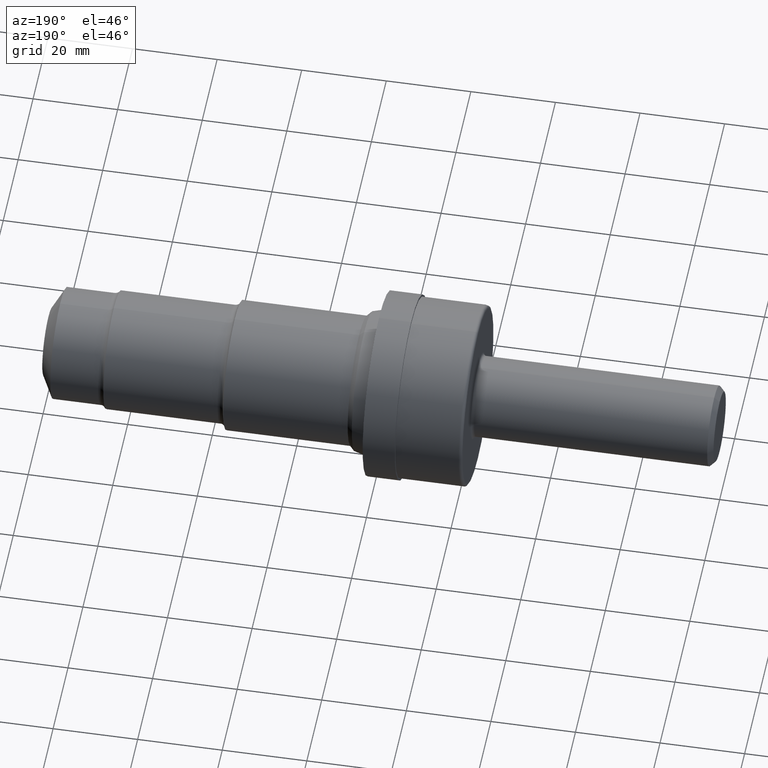
[diagram: clean part render]
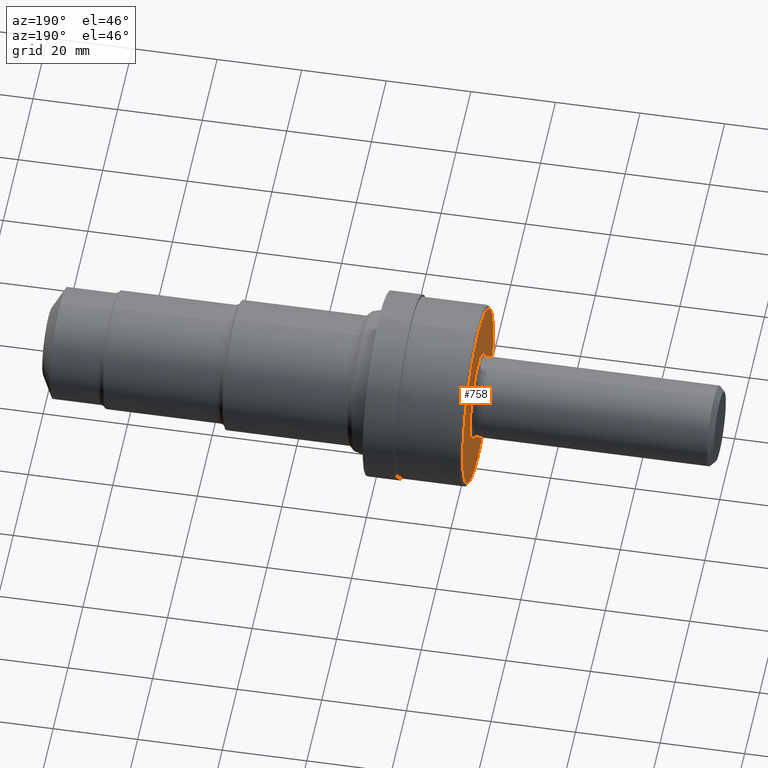
[diagram: same view with one face highlighted and labeled with its STEP entity id]
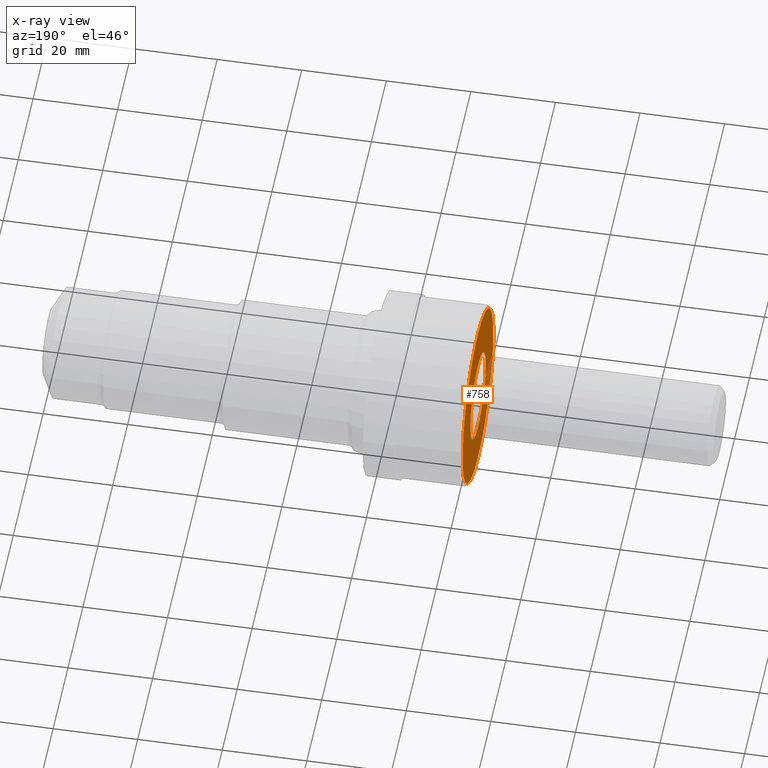
[diagram: x-ray of the same camera — body ghosted, the highlighted face saturated]
A machine part, auxiliary view. The second image highlights one B-rep face of the part: STEP entity #758.
The next image is the same camera in x-ray: the body ghosted, the highlighted face saturated — about 17% of this face is hidden behind the body in this view.
In plain terms, the highlighted planar face has unit normal (1, 0, 0).
Its self-contained STEP definition (entity closure, byte-faithful):
#44 = CARTESIAN_POINT ( 'NONE',  ( 2.250000000000000000, 0.0000000000000000000, 0.8125000000000000000 ) ) ;
#47 = CARTESIAN_POINT ( 'NONE',  ( 2.250000000000000000, 4.957982566348066292E-17, -0.4048500000000005983 ) ) ;
#57 = AXIS2_PLACEMENT_3D ( 'NONE', #583, #532, #941 ) ;
#92 = VERTEX_POINT ( 'NONE', #435 ) ;
#94 = CIRCLE ( 'NONE', #480, 0.8125000000000000000 ) ;
#103 = ORIENTED_EDGE ( 'NONE', *, *, #621, .T. ) ;
#113 = VERTEX_POINT ( 'NONE', #44 ) ;
#132 = EDGE_CURVE ( 'NONE', #92, #414, #432, .T. ) ;
#156 = AXIS2_PLACEMENT_3D ( 'NONE', #649, #638, #171 ) ;
#171 = DIRECTION ( 'NONE',  ( 0.0000000000000000000, 0.0000000000000000000, -1.000000000000000000 ) ) ;
#174 = CARTESIAN_POINT ( 'NONE',  ( 2.250000000000000000, 0.0000000000000000000, 0.0000000000000000000 ) ) ;
#260 = AXIS2_PLACEMENT_3D ( 'NONE', #783, #692, #715 ) ;
#273 = ORIENTED_EDGE ( 'NONE', *, *, #132, .F. ) ;
#295 = CARTESIAN_POINT ( 'NONE',  ( 2.250000000000000000, 0.0000000000000000000, 0.0000000000000000000 ) ) ;
#344 = PLANE ( 'NONE',  #156 ) ;
#349 = FACE_OUTER_BOUND ( 'NONE', #423, .T. ) ;
#360 = CIRCLE ( 'NONE', #57, 0.8125000000000000000 ) ;
#414 = VERTEX_POINT ( 'NONE', #47 ) ;
#423 = EDGE_LOOP ( 'NONE', ( #103, #836 ) ) ;
#425 = EDGE_LOOP ( 'NONE', ( #273, #878 ) ) ;
#432 = CIRCLE ( 'NONE', #911, 0.4048500000000005983 ) ;
#435 = CARTESIAN_POINT ( 'NONE',  ( 2.250000000000000000, 0.0000000000000000000, 0.4048500000000005983 ) ) ;
#470 = DIRECTION ( 'NONE',  ( 0.0000000000000000000, 0.0000000000000000000, 1.000000000000000000 ) ) ;
#474 = DIRECTION ( 'NONE',  ( -1.000000000000000000, -0.0000000000000000000, -0.0000000000000000000 ) ) ;
#480 = AXIS2_PLACEMENT_3D ( 'NONE', #295, #507, #646 ) ;
#507 = DIRECTION ( 'NONE',  ( -1.000000000000000000, -0.0000000000000000000, -0.0000000000000000000 ) ) ;
#532 = DIRECTION ( 'NONE',  ( -1.000000000000000000, -0.0000000000000000000, -0.0000000000000000000 ) ) ;
#546 = CARTESIAN_POINT ( 'NONE',  ( 2.250000000000000000, 1.013395226294434815E-16, -0.8125000000000000000 ) ) ;
#583 = CARTESIAN_POINT ( 'NONE',  ( 2.250000000000000000, 0.0000000000000000000, 0.0000000000000000000 ) ) ;
#621 = EDGE_CURVE ( 'NONE', #113, #842, #94, .T. ) ;
#638 = DIRECTION ( 'NONE',  ( 1.000000000000000000, 0.0000000000000000000, 0.0000000000000000000 ) ) ;
#646 = DIRECTION ( 'NONE',  ( 0.0000000000000000000, 0.0000000000000000000, 1.000000000000000000 ) ) ;
#649 = CARTESIAN_POINT ( 'NONE',  ( 2.250000000000000000, 0.8125000000000000000, 0.0000000000000000000 ) ) ;
#692 = DIRECTION ( 'NONE',  ( -1.000000000000000000, -0.0000000000000000000, -0.0000000000000000000 ) ) ;
#715 = DIRECTION ( 'NONE',  ( 0.0000000000000000000, 0.0000000000000000000, 1.000000000000000000 ) ) ;
#722 = FACE_BOUND ( 'NONE', #425, .T. ) ;
#723 = EDGE_CURVE ( 'NONE', #414, #92, #930, .T. ) ;
#758 = ADVANCED_FACE ( 'NONE', ( #722, #349 ), #344, .F. ) ;
#783 = CARTESIAN_POINT ( 'NONE',  ( 2.250000000000000000, 0.0000000000000000000, 0.0000000000000000000 ) ) ;
#836 = ORIENTED_EDGE ( 'NONE', *, *, #920, .T. ) ;
#842 = VERTEX_POINT ( 'NONE', #546 ) ;
#878 = ORIENTED_EDGE ( 'NONE', *, *, #723, .F. ) ;
#911 = AXIS2_PLACEMENT_3D ( 'NONE', #174, #474, #470 ) ;
#920 = EDGE_CURVE ( 'NONE', #842, #113, #360, .T. ) ;
#930 = CIRCLE ( 'NONE', #260, 0.4048500000000005983 ) ;
#941 = DIRECTION ( 'NONE',  ( 0.0000000000000000000, 0.0000000000000000000, 1.000000000000000000 ) ) ;